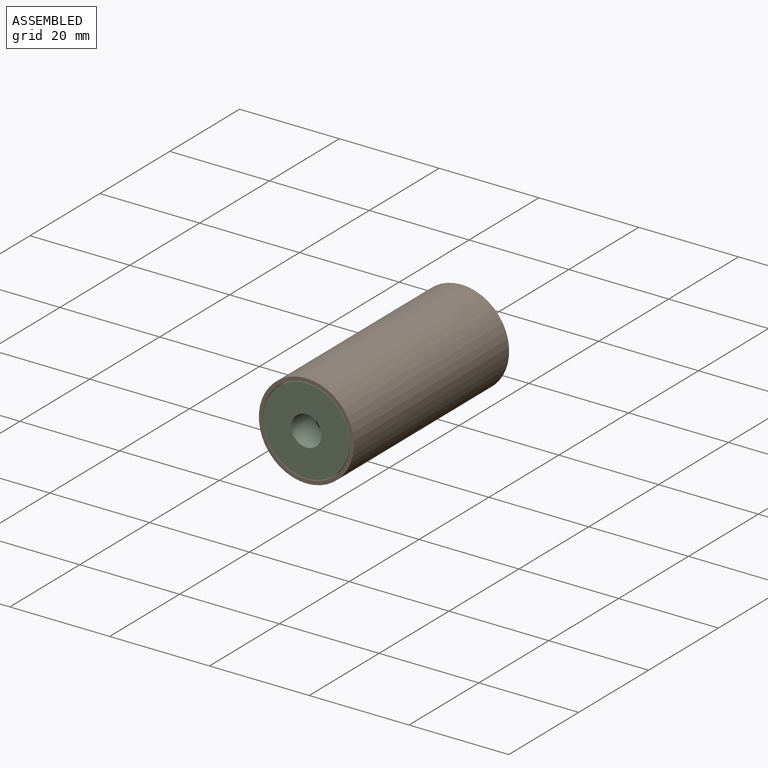
[diagram: assembled view]
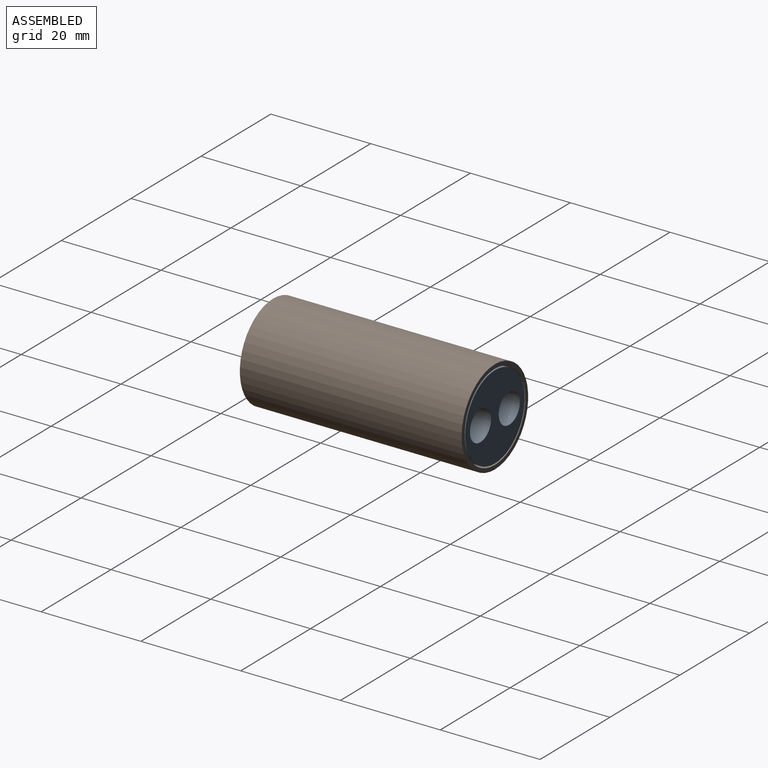
[diagram: assembled view, second angle]
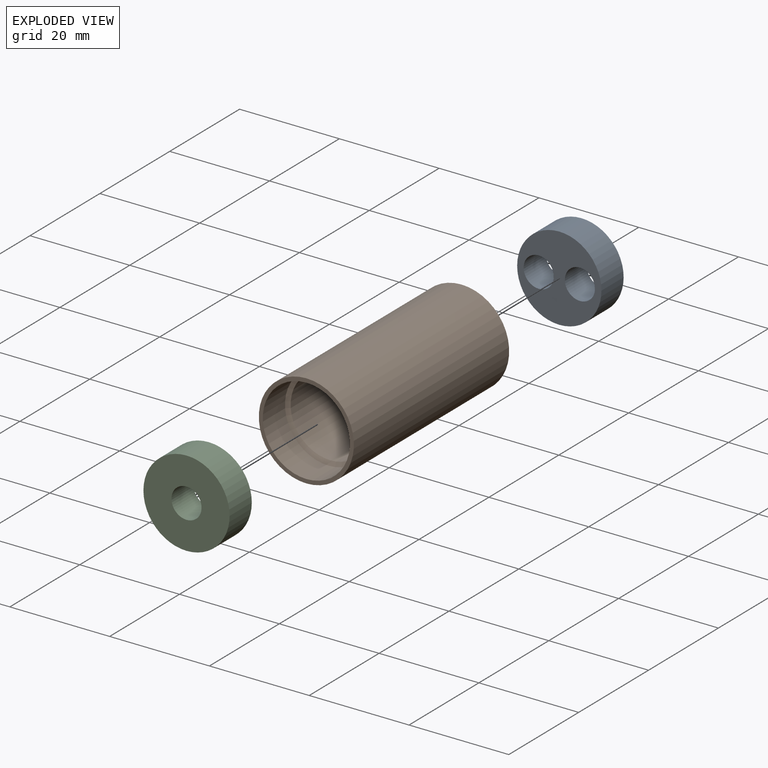
[diagram: exploded view]
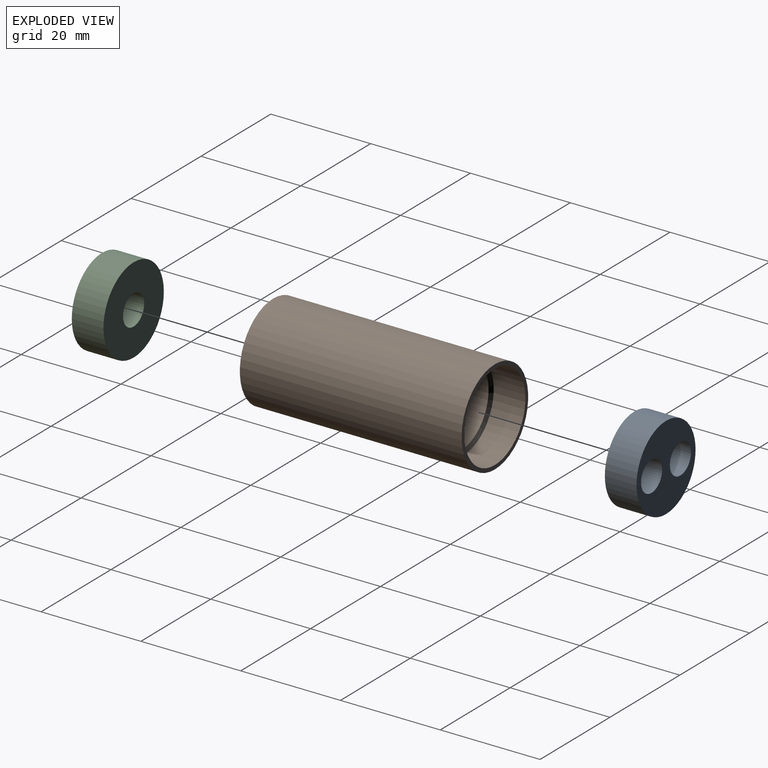
[diagram: exploded view, second angle]
ASSEMBLY  parts=3 mates=2
PART A: 5 faces, bbox 16.9x6.4x16.9 mm
  f0: cylinder r=8.45mm len=16.89mm, axis (0,1,0), area 337mm2, adj f1,f2
  f1: plane 16.89x16.89mm, normal (0,-1,0), area 166.7mm2, adj f0,f3,f4
  f2: plane 16.89x16.89mm, normal (0,1,0), area 166.7mm2, adj f0,f3,f4
  f3: cylinder r=3.02mm len=6.35mm, axis (0,-1,0), area 120.6mm2, adj f1,f2
  f4: cylinder r=3.02mm len=6.35mm, axis (0,-1,0), area 120.6mm2, adj f1,f2
PART B: 8 faces, bbox 19.1x44.5x19.1 mm
  f0: cylinder r=9.53mm len=44.45mm, axis (0,1,0), area 2660.2mm2, adj f1,f2
  f1: plane 19.05x19.05mm, normal (0,-1,0), area 45.5mm2, adj f0,f6
  f2: plane 19.05x19.05mm, normal (0,1,0), area 45.5mm2, adj f0,f4
  f3: cone r=0mm half-angle=59deg, axis (0,1,0), area 48.5mm2, adj f4,f7
  f4: cylinder r=8.73mm len=17.46mm, axis (0,1,0), area 348.4mm2, adj f2,f3
  f5: cone r=0mm half-angle=59deg, axis (0,-1,0), area 48.5mm2, adj f6,f7
  f6: cylinder r=8.73mm len=17.46mm, axis (0,-1,0), area 348.4mm2, adj f1,f5
  f7: cylinder r=7.94mm len=30.8mm, axis (0,1,0), area 1535.9mm2, adj f3,f5
PART C: 4 faces, bbox 17.3x6.4x17.3 mm
  f0: cylinder r=8.64mm len=17.27mm, axis (0,1,0), area 344.6mm2, adj f1,f2
  f1: plane 17.27x17.27mm, normal (0,-1,0), area 205.6mm2, adj f0,f3
  f2: plane 17.27x17.27mm, normal (0,1,0), area 205.6mm2, adj f0,f3
  f3: cylinder r=3.02mm len=6.35mm, axis (0,-1,0), area 120.6mm2, adj f1,f2
PLACE A t=(13.34,-29.73,-13.26)mm
PLACE B t=(13.34,-29.73,-13.26)mm
PLACE C t=(13.34,-67.83,-13.26)mm
MATE fastened B.f3 <-> A.f0  axis (0,1,0) through (13.34,-36.08,-13.26)mm
MATE fastened B.f3 <-> C.f0  axis (0,-1,0) through (13.34,-67.83,-13.26)mm
